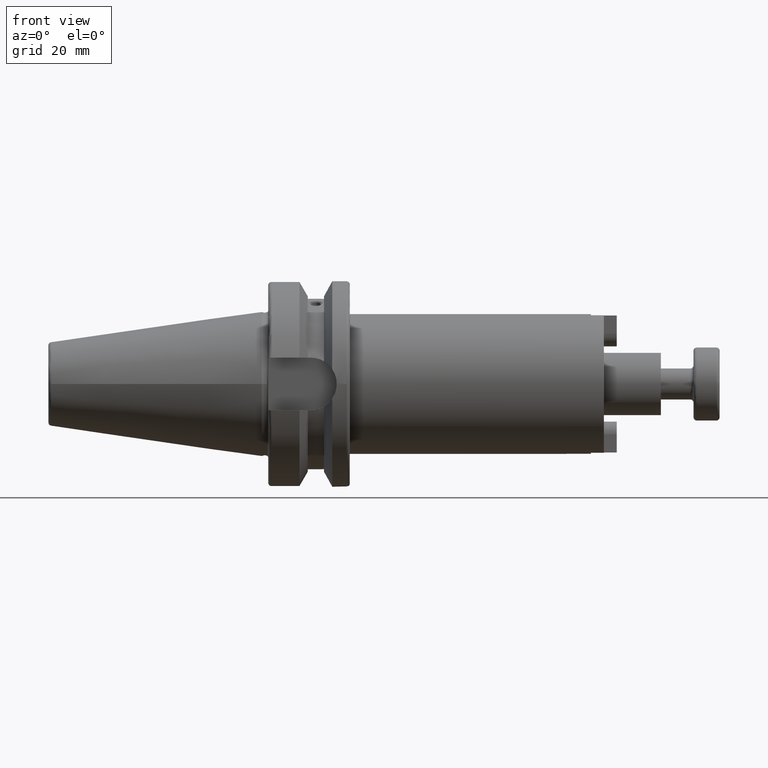
[diagram: clean part render]
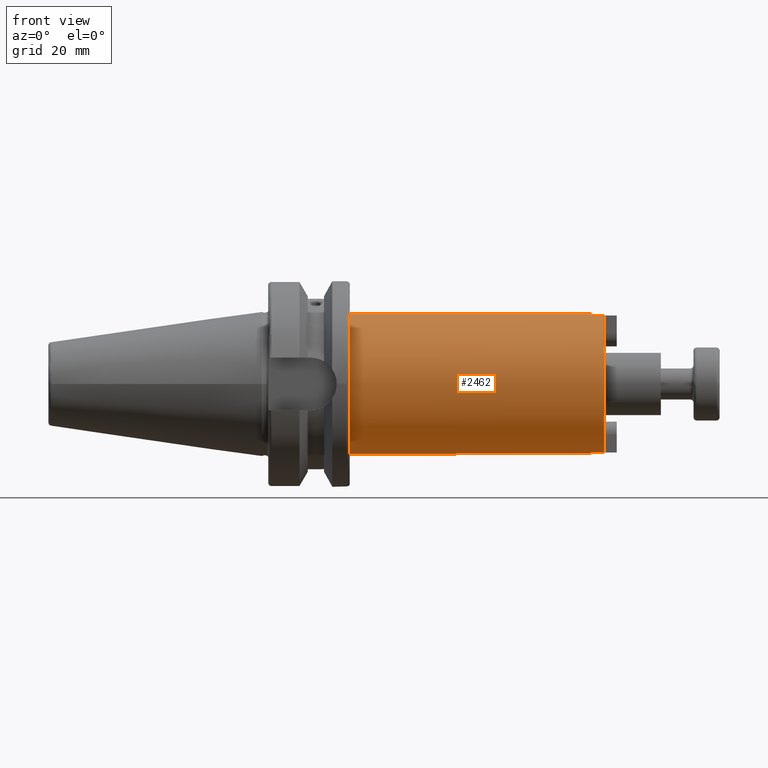
[diagram: same view with one face highlighted and labeled with its STEP entity id]
A machine part, front view. The second image highlights one B-rep face of the part: STEP entity #2462.
In plain terms, the highlighted cylindrical surface (bore or boss wall) has radius 21.44 mm, axis along (1, 0, 0).
Its self-contained STEP definition (entity closure, byte-faithful):
#573=CYLINDRICAL_SURFACE('',#2762,21.44);
#609=CIRCLE('',#2733,21.44);
#610=CIRCLE('',#2734,21.44);
#611=CIRCLE('',#2736,21.44);
#613=CIRCLE('',#2738,21.44);
#618=CIRCLE('',#2749,21.44);
#626=CIRCLE('',#2763,21.44);
#770=FACE_OUTER_BOUND('',#899,.T.);
#899=EDGE_LOOP('',(#1871,#1872,#1873,#1874,#1875,#1876,#1877,#1878,#1879,
#1880,#1881,#1882));
#1024=LINE('',#3838,#1158);
#1030=LINE('',#3856,#1164);
#1038=LINE('',#3892,#1172);
#1041=LINE('',#3898,#1175);
#1048=LINE('',#4007,#1182);
#1158=VECTOR('',#3053,10.);
#1164=VECTOR('',#3069,10.);
#1172=VECTOR('',#3109,10.);
#1175=VECTOR('',#3114,10.);
#1182=VECTOR('',#3155,21.44);
#1292=VERTEX_POINT('',#3836);
#1293=VERTEX_POINT('',#3837);
#1299=VERTEX_POINT('',#3854);
#1300=VERTEX_POINT('',#3855);
#1303=VERTEX_POINT('',#3866);
#1304=VERTEX_POINT('',#3870);
#1307=VERTEX_POINT('',#3876);
#1312=VERTEX_POINT('',#3891);
#1314=VERTEX_POINT('',#3897);
#1327=VERTEX_POINT('',#4006);
#1490=EDGE_CURVE('',#1292,#1293,#1024,.T.);
#1498=EDGE_CURVE('',#1299,#1300,#1030,.T.);
#1504=EDGE_CURVE('',#1300,#1303,#609,.T.);
#1505=EDGE_CURVE('',#1303,#1292,#610,.T.);
#1506=EDGE_CURVE('',#1299,#1304,#611,.T.);
#1510=EDGE_CURVE('',#1307,#1293,#613,.T.);
#1516=EDGE_CURVE('',#1312,#1304,#1038,.T.);
#1519=EDGE_CURVE('',#1307,#1314,#1041,.T.);
#1523=EDGE_CURVE('',#1314,#1312,#618,.T.);
#1539=EDGE_CURVE('',#1303,#1327,#1048,.T.);
#1540=EDGE_CURVE('',#1327,#1327,#626,.T.);
#1871=ORIENTED_EDGE('',*,*,#1490,.T.);
#1872=ORIENTED_EDGE('',*,*,#1510,.F.);
#1873=ORIENTED_EDGE('',*,*,#1519,.T.);
#1874=ORIENTED_EDGE('',*,*,#1523,.T.);
#1875=ORIENTED_EDGE('',*,*,#1516,.T.);
#1876=ORIENTED_EDGE('',*,*,#1506,.F.);
#1877=ORIENTED_EDGE('',*,*,#1498,.T.);
#1878=ORIENTED_EDGE('',*,*,#1504,.T.);
#1879=ORIENTED_EDGE('',*,*,#1539,.T.);
#1880=ORIENTED_EDGE('',*,*,#1540,.F.);
#1881=ORIENTED_EDGE('',*,*,#1539,.F.);
#1882=ORIENTED_EDGE('',*,*,#1505,.T.);
#2462=ADVANCED_FACE('',(#770),#573,.T.);
#2733=AXIS2_PLACEMENT_3D('',#3867,#3081,#3082);
#2734=AXIS2_PLACEMENT_3D('',#3868,#3083,#3084);
#2736=AXIS2_PLACEMENT_3D('',#3871,#3087,#3088);
#2738=AXIS2_PLACEMENT_3D('',#3878,#3093,#3094);
#2749=AXIS2_PLACEMENT_3D('',#3905,#3123,#3124);
#2762=AXIS2_PLACEMENT_3D('',#4005,#3153,#3154);
#2763=AXIS2_PLACEMENT_3D('',#4008,#3156,#3157);
#3053=DIRECTION('',(1.,0.,0.));
#3069=DIRECTION('',(-1.,0.,0.));
#3081=DIRECTION('center_axis',(-1.,0.,0.));
#3082=DIRECTION('ref_axis',(0.,0.,-1.));
#3083=DIRECTION('center_axis',(-1.,0.,0.));
#3084=DIRECTION('ref_axis',(0.,0.,-1.));
#3087=DIRECTION('center_axis',(1.,0.,0.));
#3088=DIRECTION('ref_axis',(0.,0.,-1.));
#3093=DIRECTION('center_axis',(1.,0.,0.));
#3094=DIRECTION('ref_axis',(0.,0.,-1.));
#3109=DIRECTION('',(1.,0.,0.));
#3114=DIRECTION('',(-1.,0.,0.));
#3123=DIRECTION('center_axis',(-1.,0.,0.));
#3124=DIRECTION('ref_axis',(0.,0.,-1.));
#3153=DIRECTION('center_axis',(1.,0.,0.));
#3154=DIRECTION('ref_axis',(0.,0.,-1.));
#3155=DIRECTION('',(-1.,0.,0.));
#3156=DIRECTION('center_axis',(-1.,0.,0.));
#3157=DIRECTION('ref_axis',(0.,0.,-1.));
#3836=CARTESIAN_POINT('',(100.93,3.965,21.0701773841608));
#3837=CARTESIAN_POINT('',(104.9,3.965,21.0701773841608));
#3838=CARTESIAN_POINT('',(65.95,3.965,21.0701773841608));
#3854=CARTESIAN_POINT('',(104.9,-3.965,21.0701773841608));
#3855=CARTESIAN_POINT('',(100.93,-3.965,21.0701773841608));
#3856=CARTESIAN_POINT('',(65.95,-3.965,21.0701773841608));
#3866=CARTESIAN_POINT('',(100.93,-2.62564273737193E-15,21.44));
#3867=CARTESIAN_POINT('Origin',(100.93,0.,0.));
#3868=CARTESIAN_POINT('Origin',(100.93,0.,0.));
#3870=CARTESIAN_POINT('',(104.9,-3.965,-21.0701773841608));
#3871=CARTESIAN_POINT('Origin',(104.9,0.,0.));
#3876=CARTESIAN_POINT('',(104.9,3.965,-21.0701773841608));
#3878=CARTESIAN_POINT('Origin',(104.9,0.,0.));
#3891=CARTESIAN_POINT('',(100.93,-3.965,-21.0701773841608));
#3892=CARTESIAN_POINT('',(65.95,-3.965,-21.0701773841608));
#3897=CARTESIAN_POINT('',(100.93,3.965,-21.0701773841608));
#3898=CARTESIAN_POINT('',(65.95,3.965,-21.0701773841608));
#3905=CARTESIAN_POINT('Origin',(100.93,0.,0.));
#4005=CARTESIAN_POINT('Origin',(65.95,0.,0.));
#4006=CARTESIAN_POINT('',(27.,-2.62564273737193E-15,21.44));
#4007=CARTESIAN_POINT('',(65.95,-2.62564273737193E-15,21.44));
#4008=CARTESIAN_POINT('Origin',(27.,0.,0.));